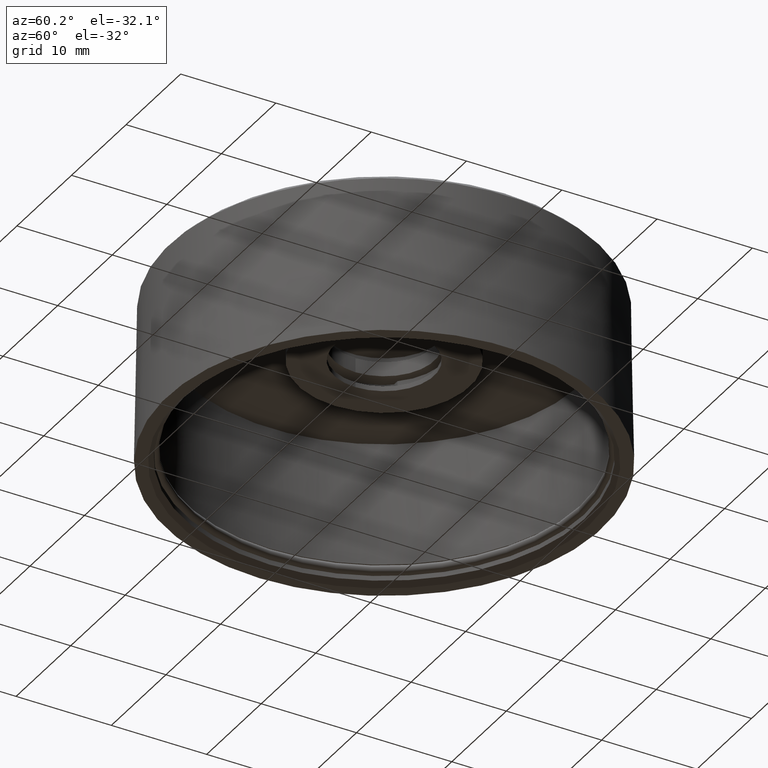
[diagram: clean part render]
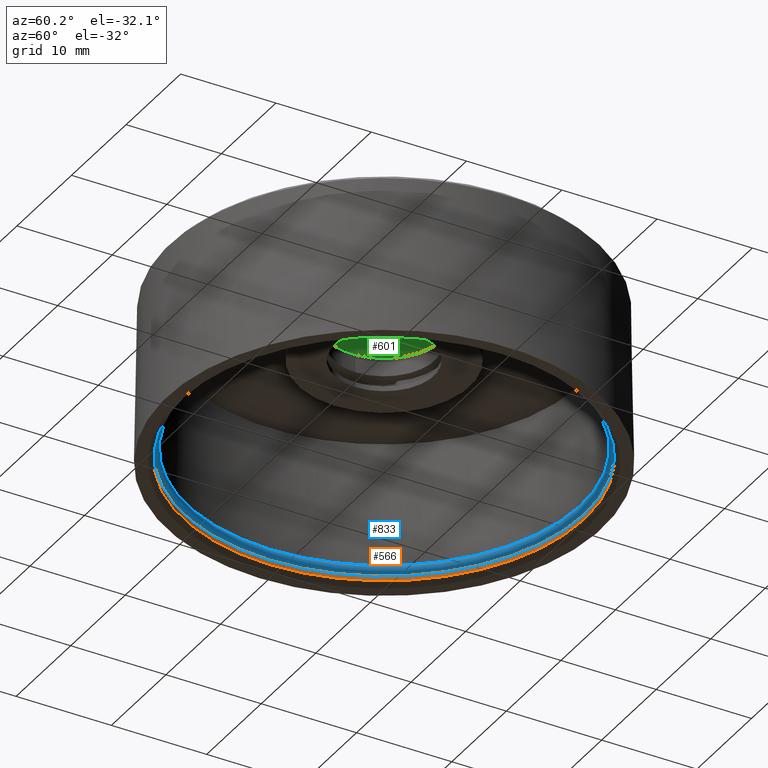
[diagram: same view with three faces highlighted in distinct colors, each labeled with its STEP entity id]
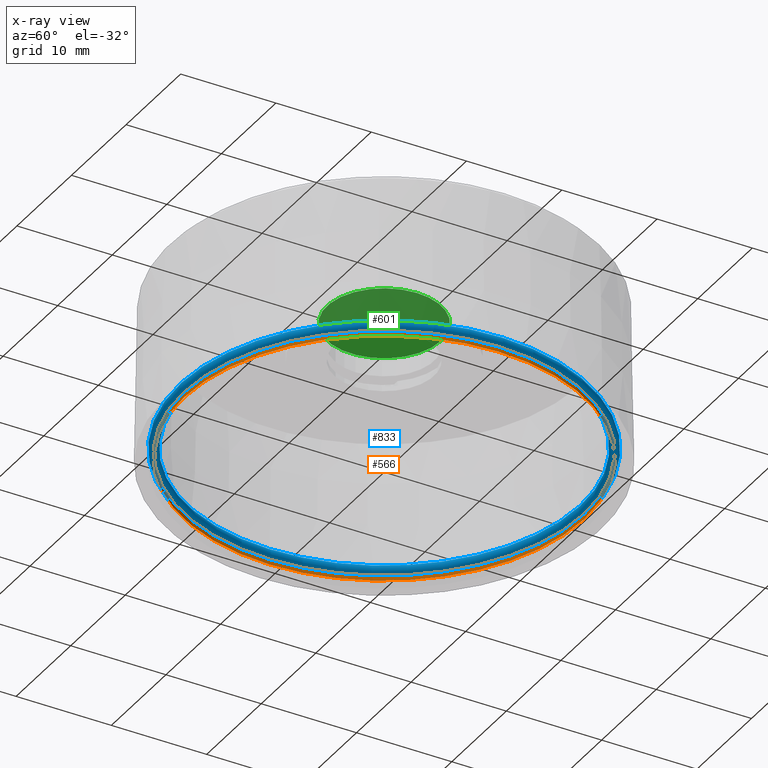
[diagram: x-ray of the same camera — body ghosted, the three highlighted faces saturated]
A machine part, auxiliary view with three faces highlighted in distinct colors.
The next image is the same camera in x-ray (body ghosted, the three faces saturated) — at least one of them is partly hidden behind the body in this view.
Their STEP definitions:

[orange] entity #566 — the highlighted conical surface has half-angle 1 deg.
#37 = FACE_OUTER_BOUND ( 'NONE', #319, .T. ) ;
#82 = EDGE_CURVE ( 'NONE', #942, #942, #271, .T. ) ;
#96 = EDGE_LOOP ( 'NONE', ( #226 ) ) ;
#113 = VERTEX_POINT ( 'NONE', #353 ) ;
#144 = CARTESIAN_POINT ( 'NONE',  ( 0.000000000000000000, -5.063263564245275507E-17, 0.01968204124323617854 ) ) ;
#146 = CARTESIAN_POINT ( 'NONE',  ( 0.000000000000000000, 0.000000000000000000, 0.03937007874015747977 ) ) ;
#151 = ORIENTED_EDGE ( 'NONE', *, *, #978, .F. ) ;
#169 = CONICAL_SURFACE ( 'NONE', #738, 0.8169291338582678197, 0.01745329251994153993 ) ;
#182 = CARTESIAN_POINT ( 'NONE',  ( 0.8265500357872047621, 0.000000000000000000, 0.03937007874015747977 ) ) ;
#200 = CARTESIAN_POINT ( 'NONE',  ( 0.000000000000000000, 0.000000000000000000, 0.5905511811023621549 ) ) ;
#211 = DIRECTION ( 'NONE',  ( 1.000000000000000000, 0.000000000000000000, 0.000000000000000000 ) ) ;
#221 = AXIS2_PLACEMENT_3D ( 'NONE', #144, #451, #761 ) ;
#226 = ORIENTED_EDGE ( 'NONE', *, *, #82, .T. ) ;
#271 = CIRCLE ( 'NONE', #685, 0.8265500357872047621 ) ;
#319 = EDGE_LOOP ( 'NONE', ( #151 ) ) ;
#353 = CARTESIAN_POINT ( 'NONE',  ( 0.8268936917600235859, -2.578016460990788333E-31, 0.01968204124323617854 ) ) ;
#451 = DIRECTION ( 'NONE',  ( 0.000000000000000000, 0.000000000000000000, 1.000000000000000000 ) ) ;
#505 = DIRECTION ( 'NONE',  ( 0.000000000000000000, 0.000000000000000000, -1.000000000000000000 ) ) ;
#566 = ADVANCED_FACE ( 'NONE', ( #647, #37 ), #169, .F. ) ;
#647 = FACE_BOUND ( 'NONE', #96, .T. ) ;
#655 = CIRCLE ( 'NONE', #221, 0.8268936917600235859 ) ;
#685 = AXIS2_PLACEMENT_3D ( 'NONE', #146, #920, #211 ) ;
#738 = AXIS2_PLACEMENT_3D ( 'NONE', #200, #505, #741 ) ;
#741 = DIRECTION ( 'NONE',  ( 1.000000000000000000, 0.000000000000000000, 0.000000000000000000 ) ) ;
#761 = DIRECTION ( 'NONE',  ( 1.000000000000000000, 6.123233995736759873E-17, 0.000000000000000000 ) ) ;
#920 = DIRECTION ( 'NONE',  ( 0.000000000000000000, 0.000000000000000000, 1.000000000000000000 ) ) ;
#942 = VERTEX_POINT ( 'NONE', #182 ) ;
#978 = EDGE_CURVE ( 'NONE', #113, #113, #655, .T. ) ;

[blue] entity #833 — the highlighted toroidal blend (fillet) surface has major radius 21 mm and minor (blend) radius 0.5 mm.
#149 = DIRECTION ( 'NONE',  ( 0.000000000000000000, 0.000000000000000000, -1.000000000000000000 ) ) ;
#308 = AXIS2_PLACEMENT_3D ( 'NONE', #376, #149, #368 ) ;
#368 = DIRECTION ( 'NONE',  ( -0.007444053080138005561, 0.9999722926530215661, 0.000000000000000000 ) ) ;
#376 = CARTESIAN_POINT ( 'NONE',  ( 0.000000000000000000, 0.000000000000000000, 0.06069705733389764435 ) ) ;
#755 = TOROIDAL_SURFACE ( 'NONE', #308, 0.8267716535433071723, 0.01968503937007873988 ) ;
#833 = ADVANCED_FACE ( 'NONE', ( ), #755, .T. ) ;

[green] entity #601 — the highlighted planar face has unit normal (0, 0, 1).
#2 = CARTESIAN_POINT ( 'NONE',  ( 0.000000000000000000, 0.000000000000000000, 0.5905511811023621549 ) ) ;
#97 = CARTESIAN_POINT ( 'NONE',  ( 0.2362204724409449064, 0.000000000000000000, 0.5905511811023621549 ) ) ;
#150 = DIRECTION ( 'NONE',  ( 0.000000000000000000, 0.000000000000000000, -1.000000000000000000 ) ) ;
#161 = EDGE_LOOP ( 'NONE', ( #485 ) ) ;
#168 = AXIS2_PLACEMENT_3D ( 'NONE', #2, #150, #243 ) ;
#243 = DIRECTION ( 'NONE',  ( 1.000000000000000000, 0.000000000000000000, 0.000000000000000000 ) ) ;
#264 = FACE_OUTER_BOUND ( 'NONE', #161, .T. ) ;
#293 = EDGE_CURVE ( 'NONE', #391, #391, #347, .T. ) ;
#347 = CIRCLE ( 'NONE', #168, 0.2362204724409449064 ) ;
#391 = VERTEX_POINT ( 'NONE', #97 ) ;
#418 = PLANE ( 'NONE',  #975 ) ;
#485 = ORIENTED_EDGE ( 'NONE', *, *, #293, .T. ) ;
#492 = DIRECTION ( 'NONE',  ( 1.000000000000000000, 0.000000000000000000, 0.000000000000000000 ) ) ;
#601 = ADVANCED_FACE ( 'NONE', ( #264 ), #418, .F. ) ;
#880 = DIRECTION ( 'NONE',  ( 0.000000000000000000, 0.000000000000000000, 1.000000000000000000 ) ) ;
#953 = CARTESIAN_POINT ( 'NONE',  ( 3.642354974003307406E-17, 0.000000000000000000, 0.5905511811023621549 ) ) ;
#975 = AXIS2_PLACEMENT_3D ( 'NONE', #953, #880, #492 ) ;